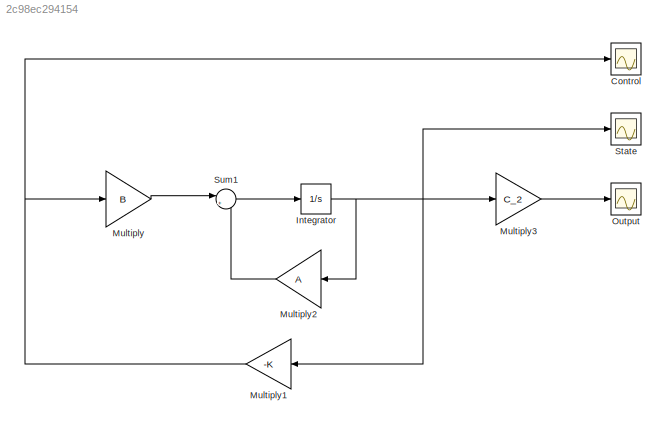
MODEL slx_2c98ec294154
KIND model
CONFIG AbsTol = auto
CONFIG EnableMultiTasking = off
CONFIG FixedStep = auto
CONFIG MaxStep = auto
CONFIG MinStep = auto
CONFIG RelTol = 1e-3
CONFIG SampleTimeConstraint = Unconstrained
CONFIG SolverName = VariableStepAuto
CONFIG StartTime = 0.0
CONFIG StopTime = 10.0
BLOCK [Scope] Control
  Floating = off
  NumInputPorts = 1
  ScopeSpecificationString = Simulink.scopes.TimeScopeBlockCfg('CurrentConfiguration', extmgr.ConfigurationSet(extmgr.Configuration('Core','General UI',true,'FigureColor',[1 1 1]),extmgr.Configuration('Core','Source UI',true),extmgr.Configuration('Sources','WiredSimulink',true,'DataLoggingVariableName','ScopeData1'),extmgr.Configuration('Visuals','Time Domain',true,'SerializedDisplays',{struct('MinYLimReal','-164069917.58497'...<+1712ch>
BLOCK [Integrator] Integrator
  InitialCondition = x_0
BLOCK [Gain] Multiply
  Gain = B
  Multiplication = Matrix(K*u)
BLOCK [Gain] Multiply1
  Gain = -K
  Multiplication = Matrix(K*u)
  NameLocation = top
BLOCK [Gain] Multiply2
  Gain = A
  Multiplication = Matrix(K*u)
  NameLocation = top
BLOCK [Gain] Multiply3
  Gain = C_2
  Multiplication = Matrix(K*u)
BLOCK [Scope] Output
  Floating = off
  NumInputPorts = 1
  ScopeSpecificationString = Simulink.scopes.TimeScopeBlockCfg('CurrentConfiguration', extmgr.ConfigurationSet(extmgr.Configuration('Core','General UI',true,'FigureColor',[1 1 1]),extmgr.Configuration('Core','Source UI',true),extmgr.Configuration('Sources','WiredSimulink',true,'DataLoggingVariableName','ScopeData3'),extmgr.Configuration('Visuals','Time Domain',true,'SerializedDisplays',{struct('MinYLimReal','-0.025','MaxYLimR...<+1559ch>
BLOCK [Scope] State
  Floating = off
  NumInputPorts = 1
  ScopeSpecificationString = Simulink.scopes.TimeScopeBlockCfg('CurrentConfiguration', extmgr.ConfigurationSet(extmgr.Configuration('Core','General UI',true,'FigureColor',[1 1 1]),extmgr.Configuration('Core','Source UI',true),extmgr.Configuration('Sources','WiredSimulink',true),extmgr.Configuration('Visuals','Time Domain',true,'SerializedDisplays',{struct('MinYLimReal','-1149081796.82704','MaxYLimReal','127675756.09189','YLab...<+1662ch>
BLOCK [Sum] Sum1
  Inputs = |++
NET Integrator:1 -> Multiply1:1, Multiply2:1, Multiply3:1, State:1
NET Multiply1:1 -> Control:1, Multiply:1
LINE Multiply2:1 -> Sum1:2
LINE Multiply3:1 -> Output:1
LINE Multiply:1 -> Sum1:1
LINE Sum1:1 -> Integrator:1
note: NET lines group one-source signal fan-out (src -> all destinations, sorted); 1:1 wires keep LINE
